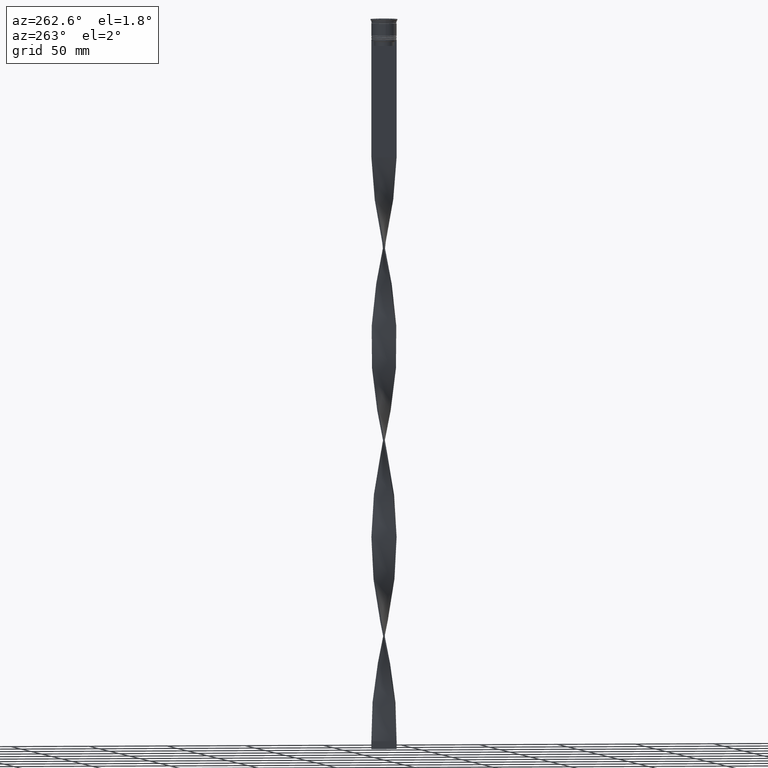
[diagram: clean part render]
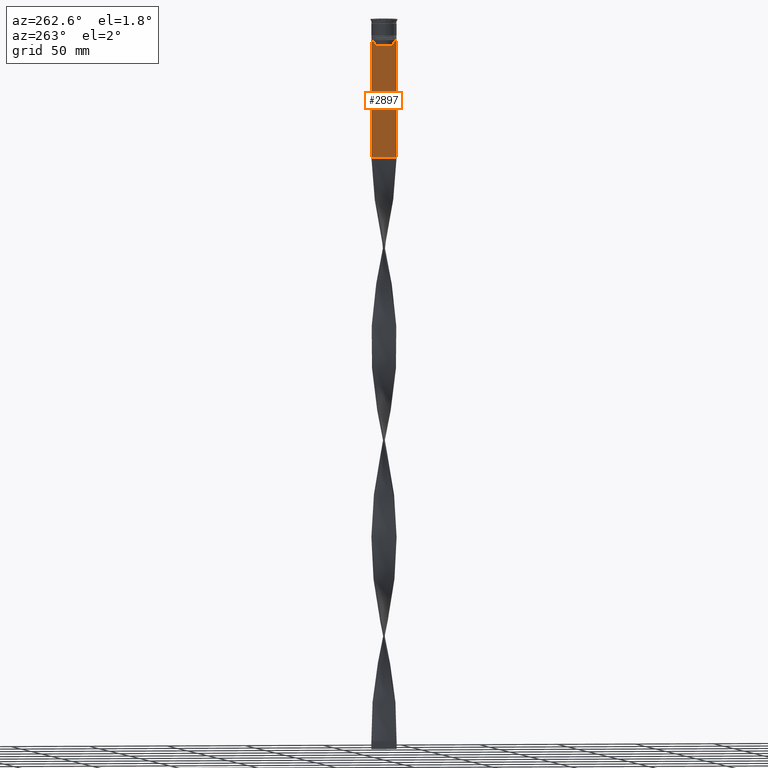
[diagram: same view with one face highlighted and labeled with its STEP entity id]
A machine part, auxiliary view. The second image highlights one B-rep face of the part: STEP entity #2897.
In plain terms, the highlighted planar face has unit normal (-1, 0, 0).
Its self-contained STEP definition (entity closure, byte-faithful):
#15 = CARTESIAN_POINT ( 'NONE',  ( -0.4999999999999998890, -6.714736947305992132, -14.16668390685738999 ) ) ;
#110 = VERTEX_POINT ( 'NONE', #2483 ) ;
#134 = CARTESIAN_POINT ( 'NONE',  ( -0.4999999999999998890, -8.000000000000003553, -88.00000000000000000 ) ) ;
#135 = ORIENTED_EDGE ( 'NONE', *, *, #606, .T. ) ;
#145 = CARTESIAN_POINT ( 'NONE',  ( -0.4999999999999998890, -6.380438856379708312, 0.000000000000000000 ) ) ;
#155 = LINE ( 'NONE', #134, #3720 ) ;
#225 = LINE ( 'NONE', #1512, #3998 ) ;
#355 = VECTOR ( 'NONE', #3716, 1000.000000000000000 ) ;
#481 = EDGE_CURVE ( 'NONE', #1842, #3895, #1110, .T. ) ;
#500 = VECTOR ( 'NONE', #1277, 1000.000000000000000 ) ;
#512 = CARTESIAN_POINT ( 'NONE',  ( -0.4999999999999998890, 7.999999999999996447, -88.00000000000000000 ) ) ;
#524 = CARTESIAN_POINT ( 'NONE',  ( -0.4999999999999998890, -6.881860213634098500, -14.00000000000000178 ) ) ;
#606 = EDGE_CURVE ( 'NONE', #2312, #3342, #779, .T. ) ;
#662 = DIRECTION ( 'NONE',  ( 0.000000000000000000, 0.000000000000000000, 1.000000000000000000 ) ) ;
#755 = DIRECTION ( 'NONE',  ( -0.000000000000000000, -0.000000000000000000, 1.000000000000000000 ) ) ;
#779 = LINE ( 'NONE', #2423, #992 ) ;
#817 = CARTESIAN_POINT ( 'NONE',  ( -0.4999999999999998890, 7.884161337770806632, -14.00000000000000178 ) ) ;
#922 = ORIENTED_EDGE ( 'NONE', *, *, #481, .F. ) ;
#941 = VECTOR ( 'NONE', #1600, 1000.000000000000000 ) ;
#992 = VECTOR ( 'NONE', #3439, 1000.000000000000000 ) ;
#1012 = VECTOR ( 'NONE', #1530, 1000.000000000000000 ) ;
#1056 = LINE ( 'NONE', #4029, #355 ) ;
#1109 = CARTESIAN_POINT ( 'NONE',  ( -0.4999999999999998890, 6.547597841304911626, -14.33335192459222718 ) ) ;
#1110 = LINE ( 'NONE', #145, #1966 ) ;
#1205 = CARTESIAN_POINT ( 'NONE',  ( -0.4999999999999998890, 7.999999999999996447, -14.00000000000000178 ) ) ;
#1207 = LINE ( 'NONE', #3123, #1012 ) ;
#1227 = EDGE_CURVE ( 'NONE', #3622, #1842, #4274, .T. ) ;
#1244 = VERTEX_POINT ( 'NONE', #3654 ) ;
#1277 = DIRECTION ( 'NONE',  ( 0.000000000000000000, -1.000000000000000000, 0.000000000000000000 ) ) ;
#1301 = ORIENTED_EDGE ( 'NONE', *, *, #1487, .F. ) ;
#1407 = CARTESIAN_POINT ( 'NONE',  ( -0.4999999999999998890, -7.884161337770806632, -14.00000000000000178 ) ) ;
#1433 = CARTESIAN_POINT ( 'NONE',  ( -0.4999999999999998890, 6.380438856379708312, -14.50000000000000000 ) ) ;
#1487 = EDGE_CURVE ( 'NONE', #2501, #3143, #1056, .T. ) ;
#1506 = DIRECTION ( 'NONE',  ( 0.000000000000000000, 0.000000000000000000, -1.000000000000000000 ) ) ;
#1512 = CARTESIAN_POINT ( 'NONE',  ( -0.4999999999999998890, -8.000000000000003553, -14.00000000000000178 ) ) ;
#1530 = DIRECTION ( 'NONE',  ( 0.000000000000000000, -1.000000000000000000, 0.000000000000000000 ) ) ;
#1536 = PLANE ( 'NONE',  #3160 ) ;
#1600 = DIRECTION ( 'NONE',  ( 0.000000000000000000, -1.000000000000000000, 0.000000000000000000 ) ) ;
#1697 = EDGE_CURVE ( 'NONE', #3052, #2112, #225, .T. ) ;
#1711 = ORIENTED_EDGE ( 'NONE', *, *, #3376, .F. ) ;
#1730 = CARTESIAN_POINT ( 'NONE',  ( -0.4999999999999998890, -6.380438856379708312, -14.50000000000000000 ) ) ;
#1842 = VERTEX_POINT ( 'NONE', #3650 ) ;
#1862 = EDGE_CURVE ( 'NONE', #1244, #3622, #2627, .T. ) ;
#1966 = VECTOR ( 'NONE', #755, 1000.000000000000000 ) ;
#2112 = VERTEX_POINT ( 'NONE', #3076 ) ;
#2134 = ORIENTED_EDGE ( 'NONE', *, *, #3169, .F. ) ;
#2194 = FACE_OUTER_BOUND ( 'NONE', #2795, .T. ) ;
#2290 = ORIENTED_EDGE ( 'NONE', *, *, #3886, .F. ) ;
#2312 = VERTEX_POINT ( 'NONE', #1205 ) ;
#2331 = CARTESIAN_POINT ( 'NONE',  ( -0.4999999999999998890, 6.399999999999999467, -17.00000000000000000 ) ) ;
#2348 = CARTESIAN_POINT ( 'NONE',  ( -0.4999999999999998890, 6.380438856379708312, 0.000000000000000000 ) ) ;
#2423 = CARTESIAN_POINT ( 'NONE',  ( -0.4999999999999998890, 7.999999999999996447, 2.031219541881394530 ) ) ;
#2440 = CARTESIAN_POINT ( 'NONE',  ( -0.4999999999999998890, 6.714736947114692711, -14.16668390704818847 ) ) ;
#2460 = VECTOR ( 'NONE', #3943, 1000.000000000000000 ) ;
#2467 = EDGE_CURVE ( 'NONE', #3305, #110, #3140, .T. ) ;
#2483 = CARTESIAN_POINT ( 'NONE',  ( -0.4999999999999998890, -8.000000000000003553, -88.00000000000000000 ) ) ;
#2501 = VERTEX_POINT ( 'NONE', #524 ) ;
#2527 = CARTESIAN_POINT ( 'NONE',  ( -0.4999999999999998890, 6.881860213634098500, -14.00000000000000178 ) ) ;
#2627 = LINE ( 'NONE', #2348, #2460 ) ;
#2670 = ORIENTED_EDGE ( 'NONE', *, *, #1862, .F. ) ;
#2700 = CARTESIAN_POINT ( 'NONE',  ( -0.4999999999999998890, -6.547597841511246131, -14.33335192438652328 ) ) ;
#2766 = LINE ( 'NONE', #3791, #941 ) ;
#2795 = EDGE_LOOP ( 'NONE', ( #4037, #2929, #1711, #135, #2290, #4124, #3778, #1301, #2134, #922, #3014, #2670 ) ) ;
#2869 = CARTESIAN_POINT ( 'NONE',  ( -0.4999999999999998890, -8.000000000000003553, 2.031219541881394530 ) ) ;
#2884 = CARTESIAN_POINT ( 'NONE',  ( -0.4999999999999998890, -8.000000000000003553, 2.031219541881394530 ) ) ;
#2890 = DIRECTION ( 'NONE',  ( 0.000000000000000000, -1.000000000000000000, 0.000000000000000000 ) ) ;
#2897 = ADVANCED_FACE ( 'NONE', ( #2194 ), #1536, .T. ) ;
#2929 = ORIENTED_EDGE ( 'NONE', *, *, #1697, .F. ) ;
#3014 = ORIENTED_EDGE ( 'NONE', *, *, #1227, .F. ) ;
#3052 = VERTEX_POINT ( 'NONE', #817 ) ;
#3076 = CARTESIAN_POINT ( 'NONE',  ( -0.4999999999999998890, 6.881860213634098500, -14.00000000000000178 ) ) ;
#3123 = CARTESIAN_POINT ( 'NONE',  ( -0.4999999999999998890, -8.000000000000003553, -14.00000000000000178 ) ) ;
#3140 = LINE ( 'NONE', #2884, #4285 ) ;
#3142 = DIRECTION ( 'NONE',  ( 0.000000000000000000, 1.000000000000000000, 0.000000000000000000 ) ) ;
#3143 = VERTEX_POINT ( 'NONE', #1407 ) ;
#3160 = AXIS2_PLACEMENT_3D ( 'NONE', #2869, #4206, #662 ) ;
#3169 = EDGE_CURVE ( 'NONE', #3895, #2501, #3202, .T. ) ;
#3177 = CARTESIAN_POINT ( 'NONE',  ( -0.4999999999999998890, -8.000000000000003553, -14.00000000000000178 ) ) ;
#3202 = B_SPLINE_CURVE_WITH_KNOTS ( 'NONE', 3,
 ( #1730, #2700, #15, #4015 ),
 .UNSPECIFIED., .F., .F.,
 ( 4, 4 ),
 ( 0.02996184199614749730, 0.03067452609193703841 ),
 .UNSPECIFIED. ) ;
#3305 = VERTEX_POINT ( 'NONE', #3177 ) ;
#3342 = VERTEX_POINT ( 'NONE', #512 ) ;
#3376 = EDGE_CURVE ( 'NONE', #2312, #3052, #2766, .T. ) ;
#3439 = DIRECTION ( 'NONE',  ( 0.000000000000000000, 0.000000000000000000, -1.000000000000000000 ) ) ;
#3622 = VERTEX_POINT ( 'NONE', #4048 ) ;
#3650 = CARTESIAN_POINT ( 'NONE',  ( -0.4999999999999998890, -6.380438856379708312, -17.00000000000000000 ) ) ;
#3654 = CARTESIAN_POINT ( 'NONE',  ( -0.4999999999999998890, 6.380438856379708312, -14.50000000000000000 ) ) ;
#3716 = DIRECTION ( 'NONE',  ( 0.000000000000000000, -1.000000000000000000, 0.000000000000000000 ) ) ;
#3720 = VECTOR ( 'NONE', #3142, 1000.000000000000000 ) ;
#3778 = ORIENTED_EDGE ( 'NONE', *, *, #3871, .F. ) ;
#3791 = CARTESIAN_POINT ( 'NONE',  ( -0.4999999999999998890, -8.000000000000003553, -14.00000000000000178 ) ) ;
#3871 = EDGE_CURVE ( 'NONE', #3143, #3305, #1207, .T. ) ;
#3886 = EDGE_CURVE ( 'NONE', #110, #3342, #155, .T. ) ;
#3895 = VERTEX_POINT ( 'NONE', #4225 ) ;
#3943 = DIRECTION ( 'NONE',  ( 0.000000000000000000, 0.000000000000000000, -1.000000000000000000 ) ) ;
#3998 = VECTOR ( 'NONE', #2890, 1000.000000000000000 ) ;
#4015 = CARTESIAN_POINT ( 'NONE',  ( -0.4999999999999998890, -6.881860213634098500, -14.00000000000000178 ) ) ;
#4029 = CARTESIAN_POINT ( 'NONE',  ( -0.4999999999999998890, -8.000000000000003553, -14.00000000000000178 ) ) ;
#4037 = ORIENTED_EDGE ( 'NONE', *, *, #4247, .F. ) ;
#4048 = CARTESIAN_POINT ( 'NONE',  ( -0.4999999999999998890, 6.380438856379708312, -17.00000000000000000 ) ) ;
#4124 = ORIENTED_EDGE ( 'NONE', *, *, #2467, .F. ) ;
#4206 = DIRECTION ( 'NONE',  ( -1.000000000000000000, 0.000000000000000000, 0.000000000000000000 ) ) ;
#4225 = CARTESIAN_POINT ( 'NONE',  ( -0.4999999999999998890, -6.380438856379708312, -14.50000000000000000 ) ) ;
#4247 = EDGE_CURVE ( 'NONE', #2112, #1244, #4310, .T. ) ;
#4274 = LINE ( 'NONE', #2331, #500 ) ;
#4285 = VECTOR ( 'NONE', #1506, 1000.000000000000000 ) ;
#4310 = B_SPLINE_CURVE_WITH_KNOTS ( 'NONE', 3,
 ( #2527, #2440, #1109, #1433 ),
 .UNSPECIFIED., .F., .F.,
 ( 4, 4 ),
 ( 0.01172465562756038263, 0.01243276816391822651 ),
 .UNSPECIFIED. ) ;